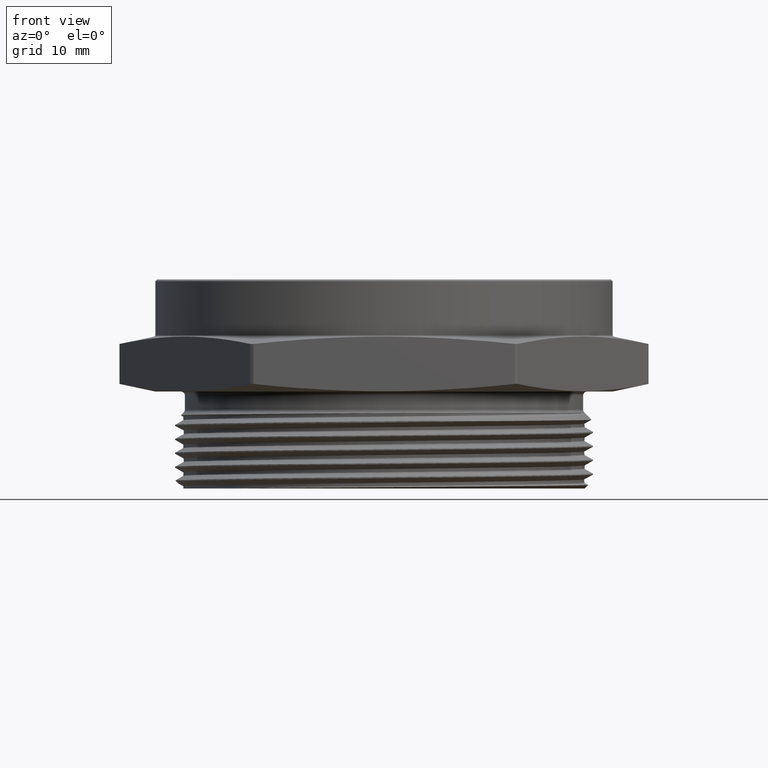
[diagram: clean part render]
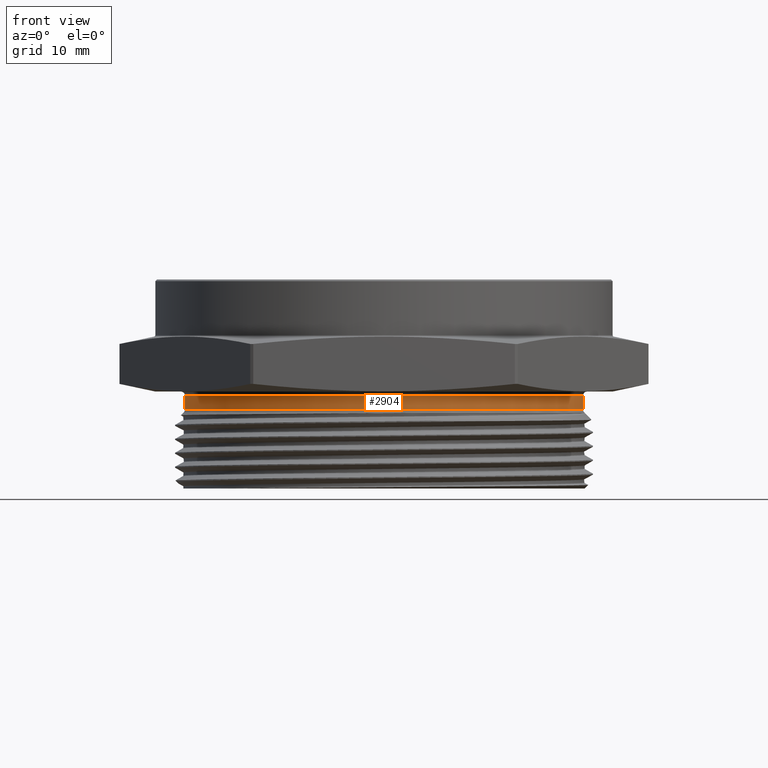
[diagram: same view with one face highlighted and labeled with its STEP entity id]
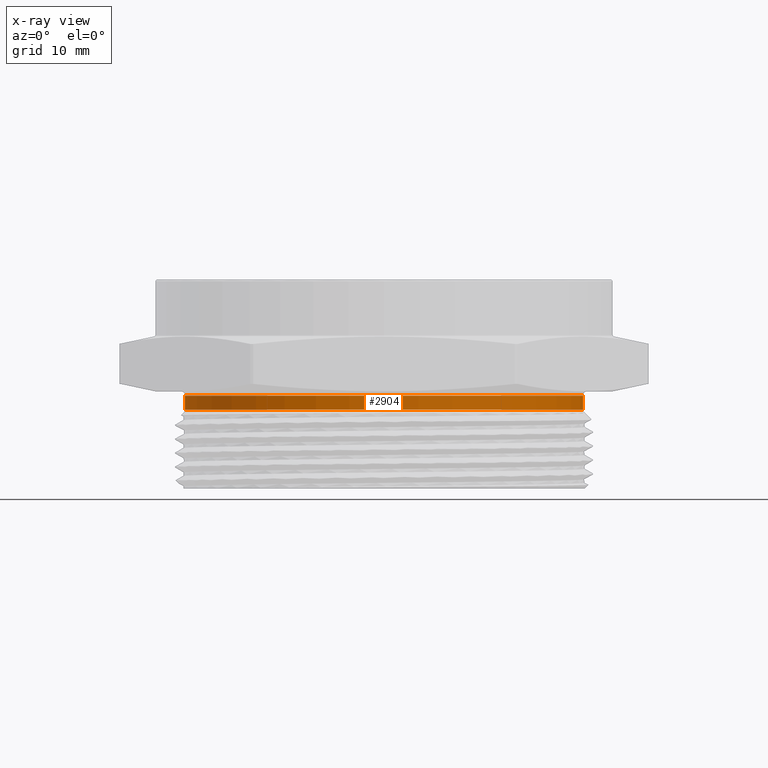
[diagram: x-ray of the same camera — body ghosted, the highlighted face saturated]
A machine part, front view. The second image highlights one B-rep face of the part: STEP entity #2904.
The next image is the same camera in x-ray: the body ghosted, the highlighted face saturated — about 0% of this face is hidden behind the body in this view.
In plain terms, the highlighted cylindrical surface (partial cylindrical patch) has radius 30.2387 mm, axis along (-0, -0, 1).
Its self-contained STEP definition (entity closure, byte-faithful):
#44 = VERTEX_POINT ( 'NONE', #3312 ) ;
#51 = VERTEX_POINT ( 'NONE', #3307 ) ;
#60 = VERTEX_POINT ( 'NONE', #3298 ) ;
#65 = VERTEX_POINT ( 'NONE', #3293 ) ;
#210 = ORIENTED_EDGE ( 'NONE', *, *, #2730, .F. ) ;
#211 = ORIENTED_EDGE ( 'NONE', *, *, #2733, .T. ) ;
#212 = ORIENTED_EDGE ( 'NONE', *, *, #2732, .T. ) ;
#213 = ORIENTED_EDGE ( 'NONE', *, *, #2739, .F. ) ;
#240 = EDGE_LOOP ( 'NONE', ( #210, #211, #212, #213 ) ) ;
#341 = LINE ( 'NONE', #2649, #344 ) ;
#342 = LINE ( 'NONE', #2641, #347 ) ;
#344 = VECTOR ( 'NONE', #2653, 39.37007874015748100 ) ;
#345 = CIRCLE ( 'NONE', #2854, 1.190499999999999900 ) ;
#346 = CIRCLE ( 'NONE', #2859, 1.190499999999999900 ) ;
#347 = VECTOR ( 'NONE', #2656, 39.37007874015748100 ) ;
#494 = FACE_OUTER_BOUND ( 'NONE', #240, .T. ) ;
#501 = CYLINDRICAL_SURFACE ( 'NONE', #1911, 1.190499999999999900 ) ;
#900 = DIRECTION ( 'NONE',  ( 1.000000000000000000, 0.0000000000000000000, 0.0000000000000000000 ) ) ;
#902 = CARTESIAN_POINT ( 'NONE',  ( 0.0000000000000000000, 0.0000000000000000000, 0.0000000000000000000 ) ) ;
#903 = DIRECTION ( 'NONE',  ( -0.0000000000000000000, -0.0000000000000000000, 1.000000000000000000 ) ) ;
#1911 = AXIS2_PLACEMENT_3D ( 'NONE', #902, #903, #900 ) ;
#2541 = DIRECTION ( 'NONE',  ( 1.000000000000000000, 0.0000000000000000000, 0.0000000000000000000 ) ) ;
#2542 = DIRECTION ( 'NONE',  ( -0.0000000000000000000, -0.0000000000000000000, 1.000000000000000000 ) ) ;
#2543 = CARTESIAN_POINT ( 'NONE',  ( 0.0000000000000000000, 0.0000000000000000000, -0.02500000000000002900 ) ) ;
#2629 = DIRECTION ( 'NONE',  ( 1.000000000000000000, 0.0000000000000000000, 0.0000000000000000000 ) ) ;
#2630 = DIRECTION ( 'NONE',  ( -0.0000000000000000000, -0.0000000000000000000, 1.000000000000000000 ) ) ;
#2631 = CARTESIAN_POINT ( 'NONE',  ( 0.0000000000000000000, 0.0000000000000000000, -0.1073223304703360800 ) ) ;
#2641 = CARTESIAN_POINT ( 'NONE',  ( 1.190499999999999900, 0.0000000000000000000, 0.0000000000000000000 ) ) ;
#2649 = CARTESIAN_POINT ( 'NONE',  ( -1.190499999999999900, 1.457942014384923800E-016, 0.0000000000000000000 ) ) ;
#2653 = DIRECTION ( 'NONE',  ( -0.0000000000000000000, -0.0000000000000000000, 1.000000000000000000 ) ) ;
#2656 = DIRECTION ( 'NONE',  ( -0.0000000000000000000, -0.0000000000000000000, 1.000000000000000000 ) ) ;
#2730 = EDGE_CURVE ( 'NONE', #65, #51, #341, .T. ) ;
#2732 = EDGE_CURVE ( 'NONE', #44, #60, #342, .T. ) ;
#2733 = EDGE_CURVE ( 'NONE', #65, #44, #345, .T. ) ;
#2739 = EDGE_CURVE ( 'NONE', #51, #60, #346, .T. ) ;
#2854 = AXIS2_PLACEMENT_3D ( 'NONE', #2631, #2630, #2629 ) ;
#2859 = AXIS2_PLACEMENT_3D ( 'NONE', #2543, #2542, #2541 ) ;
#2904 = ADVANCED_FACE ( 'NONE', ( #494 ), #501, .T. ) ;
#3293 = CARTESIAN_POINT ( 'NONE',  ( -1.190499999999999900, 1.462425648671322000E-016, -0.1073223304703360800 ) ) ;
#3298 = CARTESIAN_POINT ( 'NONE',  ( 1.190499999999999900, 0.0000000000000000000, -0.02500000000000002900 ) ) ;
#3307 = CARTESIAN_POINT ( 'NONE',  ( -1.190499999999999900, 1.457942014384923800E-016, -0.02500000000000002900 ) ) ;
#3312 = CARTESIAN_POINT ( 'NONE',  ( 1.190499999999999900, 0.0000000000000000000, -0.1073223304703360800 ) ) ;